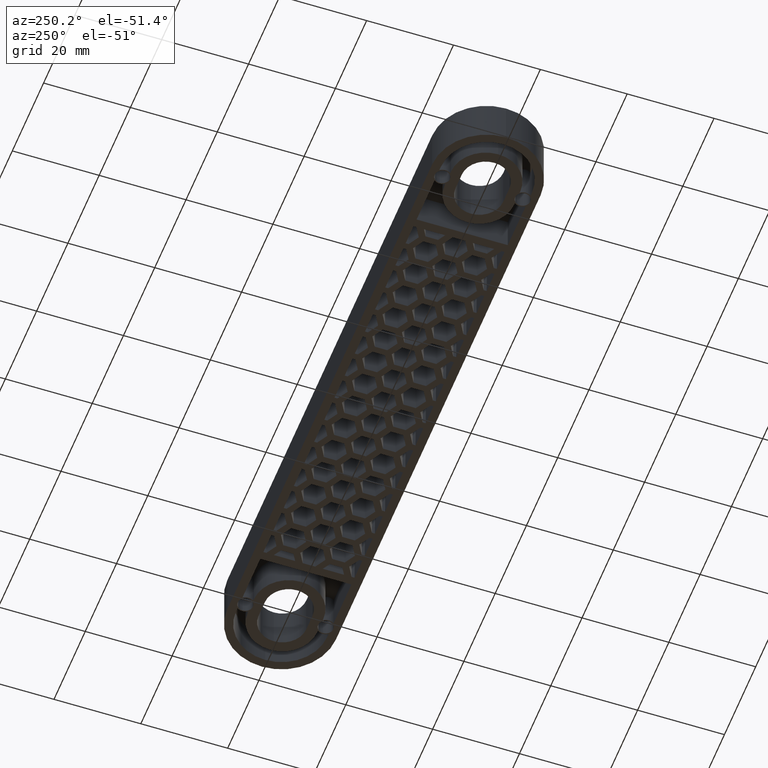
[diagram: clean part render]
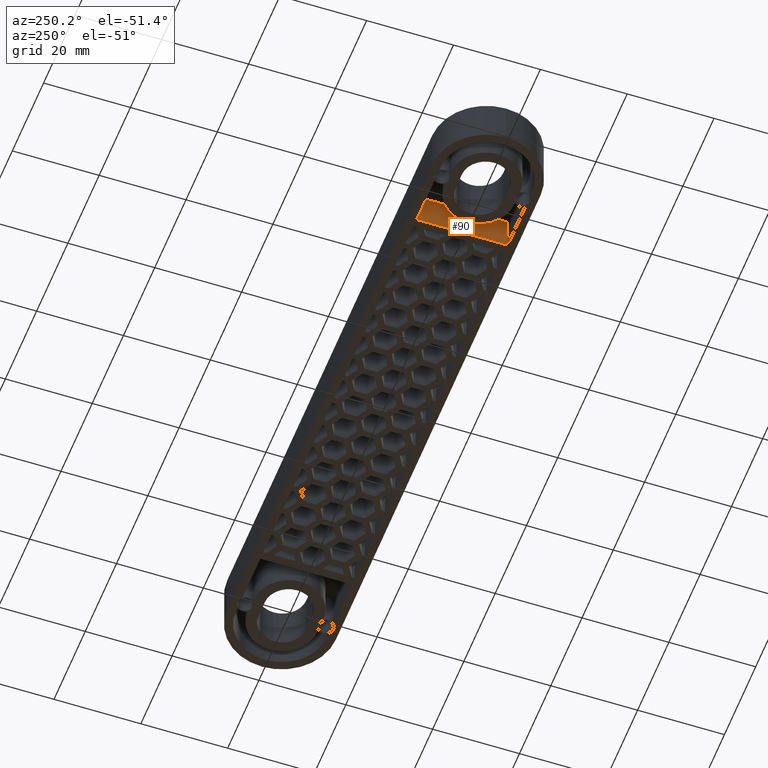
[diagram: same view with one face highlighted and labeled with its STEP entity id]
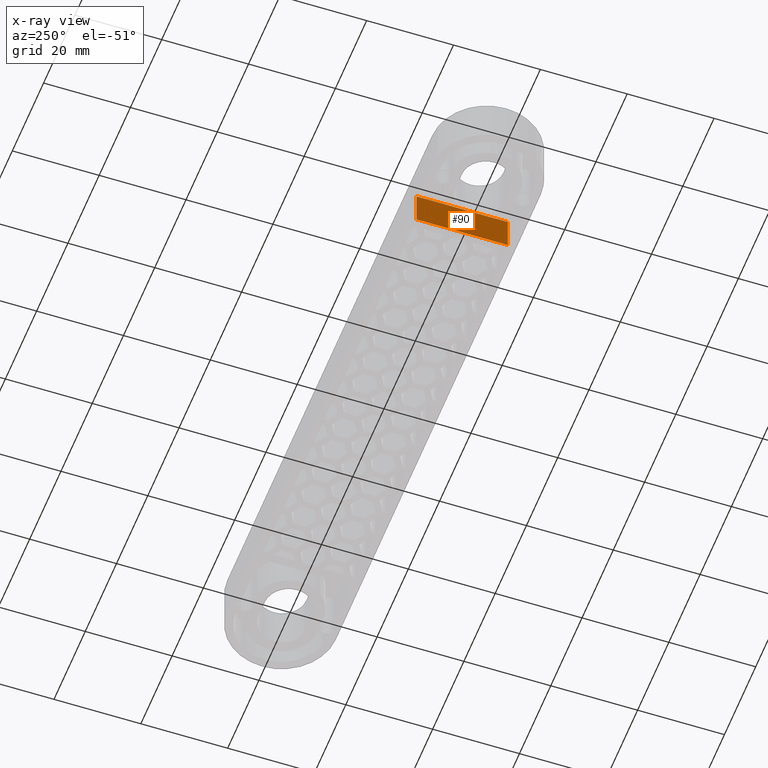
[diagram: x-ray of the same camera — body ghosted, the highlighted face saturated]
A machine part, auxiliary view. The second image highlights one B-rep face of the part: STEP entity #90.
The next image is the same camera in x-ray: the body ghosted, the highlighted face saturated — about 0% of this face is hidden behind the body in this view.
In plain terms, the highlighted planar face has unit normal (1, -0, 0).
Its self-contained STEP definition (entity closure, byte-faithful):
#90 = ADVANCED_FACE( '', ( #726 ), #727, .F. );
#726 = FACE_OUTER_BOUND( '', #2044, .T. );
#727 = PLANE( '', #2045 );
#2044 = EDGE_LOOP( '', ( #3468, #3469, #3470, #3471 ) );
#2045 = AXIS2_PLACEMENT_3D( '', #3472, #3473, #3474 );
#3468 = ORIENTED_EDGE( '', *, *, #8307, .T. );
#3469 = ORIENTED_EDGE( '', *, *, #8303, .T. );
#3470 = ORIENTED_EDGE( '', *, *, #8308, .T. );
#3471 = ORIENTED_EDGE( '', *, *, #8309, .F. );
#3472 = CARTESIAN_POINT( '', ( -49.9999999999999, -10.5000000000000, -8.00000000009747 ) );
#3473 = DIRECTION( '', ( 1.00000000000000, -8.67361737988409E-016, 5.31088347701513E-032 ) );
#3474 = DIRECTION( '', ( -8.67361737988409E-016, -1.00000000000000, 6.12303176911189E-017 ) );
#8303 = EDGE_CURVE( '', #9922, #9920, #9923, .T. );
#8307 = EDGE_CURVE( '', #9928, #9922, #9929, .T. );
#8308 = EDGE_CURVE( '', #9920, #9930, #9931, .T. );
#8309 = EDGE_CURVE( '', #9928, #9930, #9932, .T. );
#9920 = VERTEX_POINT( '', #12536 );
#9922 = VERTEX_POINT( '', #12539 );
#9923 = LINE( '', #12540, #12541 );
#9928 = VERTEX_POINT( '', #12549 );
#9929 = LINE( '', #12550, #12551 );
#9930 = VERTEX_POINT( '', #12552 );
#9931 = LINE( '', #12553, #12554 );
#9932 = LINE( '', #12555, #12556 );
#12536 = CARTESIAN_POINT( '', ( -49.9999999999999, -10.5000000000000, 7.99999999999997 ) );
#12539 = CARTESIAN_POINT( '', ( -49.9999999999999, -10.5000000000000, -1.32348694720577E-014 ) );
#12540 = CARTESIAN_POINT( '', ( -49.9999999999999, -10.5000000000000, -8.00000000009747 ) );
#12541 = VECTOR( '', #16491, 1000.00000000000 );
#12549 = CARTESIAN_POINT( '', ( -49.9999999999999, 10.5000000000000, -1.45207061435712E-014 ) );
#12550 = CARTESIAN_POINT( '', ( -49.9999999999999, 9.87925019568797E-014, -1.38777878078145E-014 ) );
#12551 = VECTOR( '', #16495, 1000.00000000000 );
#12552 = CARTESIAN_POINT( '', ( -49.9999999999999, 10.5000000000000, 7.99999999999997 ) );
#12553 = CARTESIAN_POINT( '', ( -49.9999999999999, -10.5000000000000, 7.99999999999997 ) );
#12554 = VECTOR( '', #16496, 1000.00000000000 );
#12555 = CARTESIAN_POINT( '', ( -49.9999999999999, 10.5000000000000, -8.00000000009747 ) );
#12556 = VECTOR( '', #16497, 1000.00000000000 );
#16491 = DIRECTION( '', ( 0.000000000000000, 6.12303176911189E-017, 1.00000000000000 ) );
#16495 = DIRECTION( '', ( -8.67361737988409E-016, -1.00000000000000, 6.12303176911189E-017 ) );
#16496 = DIRECTION( '', ( 8.67361737988409E-016, 1.00000000000000, -6.12303176911189E-017 ) );
#16497 = DIRECTION( '', ( 0.000000000000000, 6.12303176911189E-017, 1.00000000000000 ) );